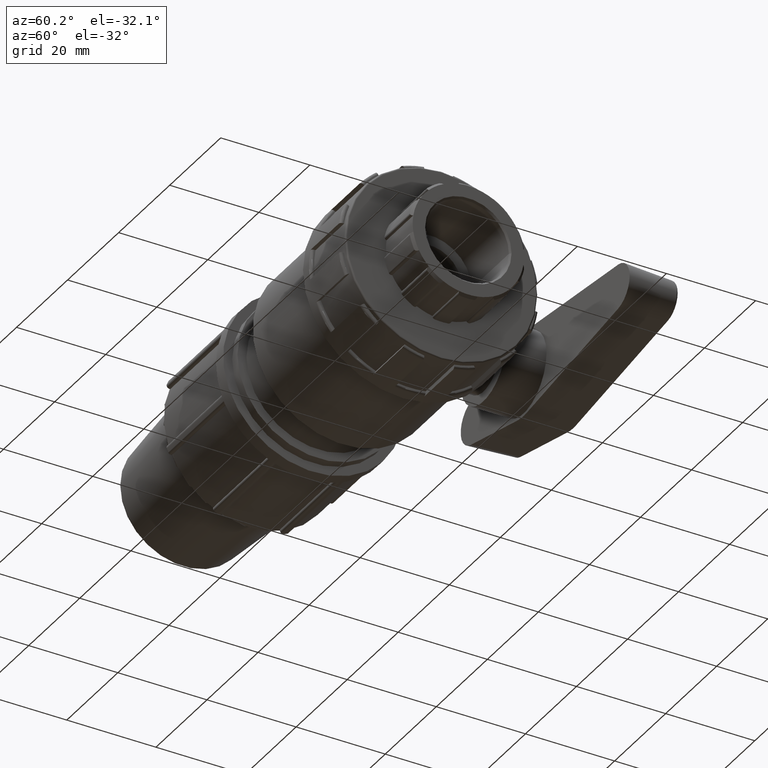
[diagram: clean part render]
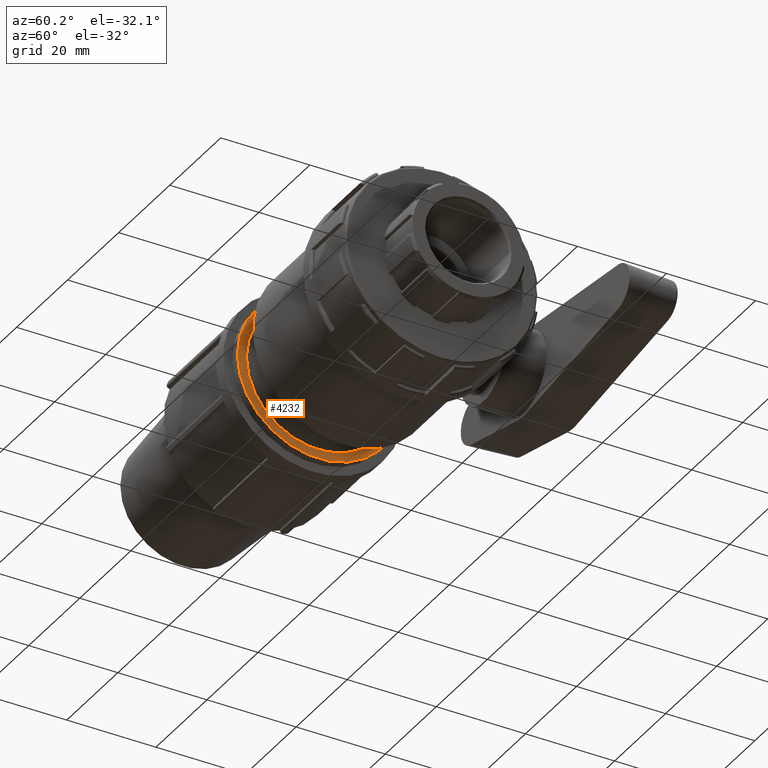
[diagram: same view with one face highlighted and labeled with its STEP entity id]
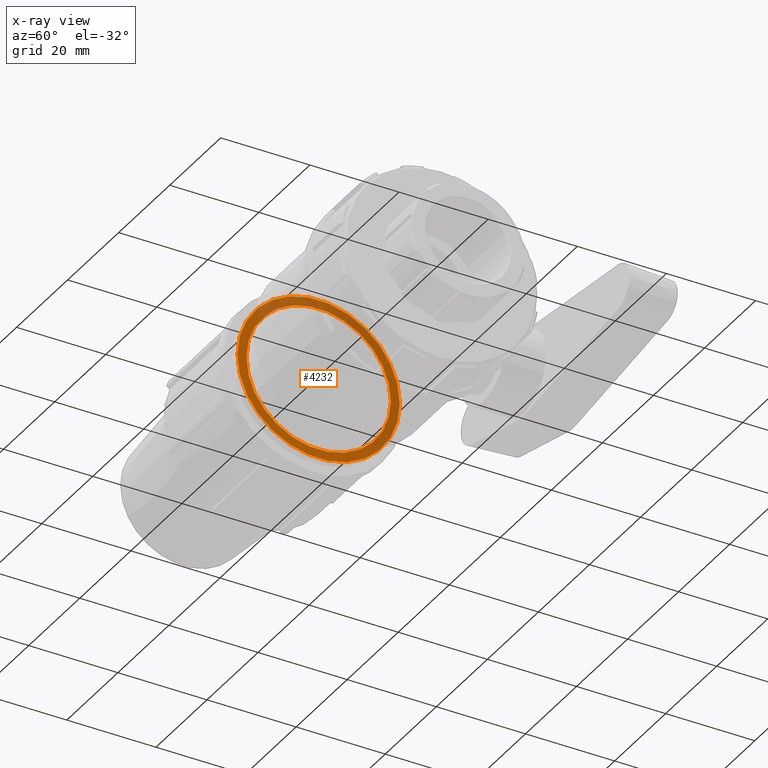
[diagram: x-ray of the same camera — body ghosted, the highlighted face saturated]
A machine part, auxiliary view. The second image highlights one B-rep face of the part: STEP entity #4232.
The next image is the same camera in x-ray: the body ghosted, the highlighted face saturated — about 50% of this face is hidden behind the body in this view.
In plain terms, the highlighted planar face has unit normal (1, 0, 0).
Its self-contained STEP definition (entity closure, byte-faithful):
#100=FACE_BOUND('',#855,.T.);
#204=PLANE('',#4726);
#580=FACE_OUTER_BOUND('',#854,.T.);
#854=EDGE_LOOP('',(#3902));
#855=EDGE_LOOP('',(#3903));
#1617=CIRCLE('',#4725,16.2);
#1618=CIRCLE('',#4727,18.225);
#2030=VERTEX_POINT('',#8654);
#2031=VERTEX_POINT('',#8657);
#2657=EDGE_CURVE('',#2030,#2030,#1617,.T.);
#2658=EDGE_CURVE('',#2031,#2031,#1618,.T.);
#3902=ORIENTED_EDGE('',*,*,#2658,.F.);
#3903=ORIENTED_EDGE('',*,*,#2657,.T.);
#4232=ADVANCED_FACE('',(#580,#100),#204,.T.);
#4725=AXIS2_PLACEMENT_3D('',#8655,#5952,#5953);
#4726=AXIS2_PLACEMENT_3D('',#8656,#5954,#5955);
#4727=AXIS2_PLACEMENT_3D('',#8658,#5956,#5957);
#5952=DIRECTION('center_axis',(-1.,-1.09423447351567E-31,0.));
#5953=DIRECTION('ref_axis',(0.,0.,1.));
#5954=DIRECTION('center_axis',(1.,1.09423447351567E-31,0.));
#5955=DIRECTION('ref_axis',(0.,0.,-1.));
#5956=DIRECTION('center_axis',(-1.,-1.09423447351567E-31,0.));
#5957=DIRECTION('ref_axis',(0.,0.,1.));
#8654=CARTESIAN_POINT('',(-21.3416666666667,16.2,0.));
#8655=CARTESIAN_POINT('Origin',(-21.3416666666667,-6.42042077335322E-30,
0.));
#8656=CARTESIAN_POINT('Origin',(-21.3416666666667,18.225,0.));
#8657=CARTESIAN_POINT('',(-21.3416666666667,18.225,0.));
#8658=CARTESIAN_POINT('Origin',(-21.3416666666667,-6.42042077335322E-30,
0.));